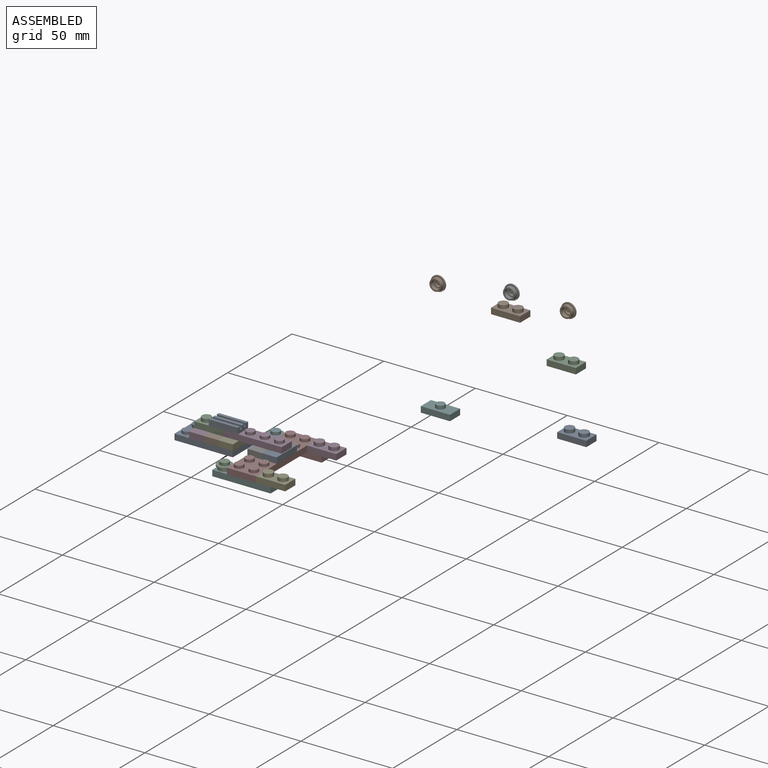
[diagram: assembled view]
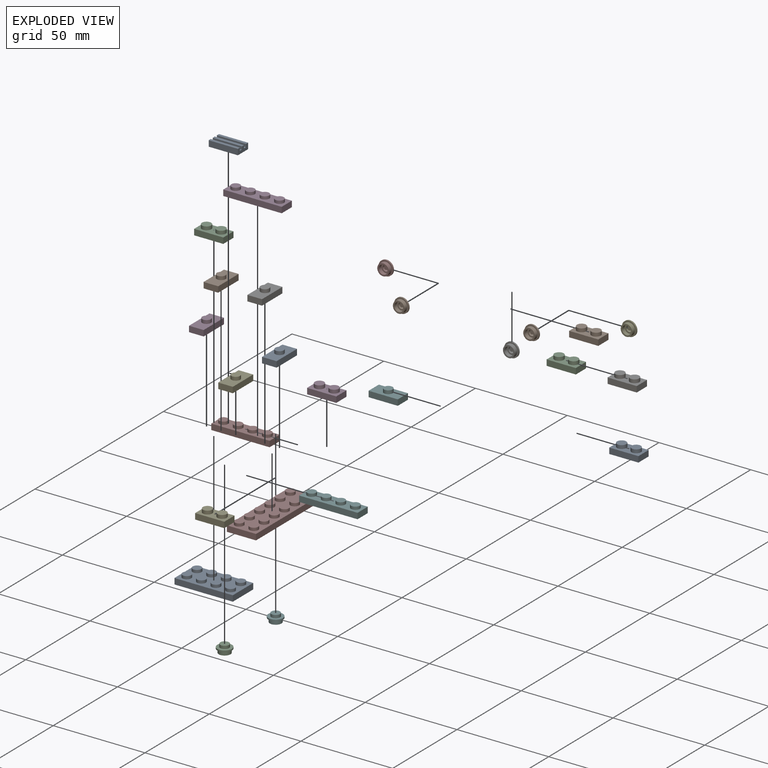
[diagram: exploded view]
GUIDED TOUR — MATED ASSEMBLY (Onshape document 3af920d181990c93784bbb1c, AutoMate assembly 3af920d181990c93784bbb1c_ad945e3d66dcbb248d293d44_ecacbf3d01ad1f083bfc4372_default)

This assembly has 26 components, labeled P0..P25 below (a component is one placed occurrence of a part; the same part can appear more than once), held together by 15 mates. A mate is a constraint between two components; its type names the relative motion it leaves free:
  FASTENED — locks the two components together rigidly (no relative motion).
Axis/direction vectors are unit vectors and 'through' points are millimeter coordinates, both in the assembly's world frame.

MATES
  1. FASTENED "Fastened 2": P13 <-> P7, direction (0.000, 0.000, 1.000) through (-69.22, -149.18, -33.66) mm
  2. FASTENED "Fastened 14": P18 <-> P25, direction (0.000, 0.000, -1.000) through (-93.08, -129.18, -26.98) mm
  3. FASTENED "Fastened 4": P3 <-> P15, direction (0.000, 0.000, -1.000) through (-53.31, -109.43, -33.66) mm
  4. FASTENED "Fastened 6": P10 <-> P13, direction (0.000, 0.000, -1.000) through (-77.18, -149.18, -33.66) mm
  5. FASTENED "Fastened 1": P7 <-> P15, direction (0.000, 0.000, -1.000) through (-61.27, -109.43, -33.66) mm
  6. FASTENED "Fastened 9": P11 <-> P22, direction (0.000, 0.000, -1.000) through (-69.22, -129.18, -26.98) mm
  7. FASTENED "Fastened 10": P20 <-> P24, direction (0.000, 0.000, -1.000) through (-81.16, -121.23, -32.06) mm
  8. FASTENED "Fastened 3": P13 <-> P12, direction (0.000, 0.000, 1.000) through (-53.31, -149.18, -33.66) mm
  9. FASTENED "Fastened 7": P8 <-> P7, direction (0.000, 0.000, -1.000) through (-65.25, -129.18, -32.06) mm
  10. FASTENED "Fastened 5": P21 <-> P15, direction (0.000, 0.000, -1.000) through (-77.18, -109.43, -33.66) mm
  11. FASTENED "Fastened 12": P19 <-> P24, direction (0.000, 0.000, 1.000) through (-97.07, -137.11, -32.06) mm
  12. FASTENED "Fastened 11": P25 <-> P20, direction (0.000, 0.000, -1.000) through (-89.11, -137.13, -32.06) mm
  13. FASTENED "Fastened 13": P20 <-> P11, direction (0.000, 0.000, 1.000) through (-85.13, -129.18, -26.98) mm
  14. FASTENED "Fastened 15": P0 <-> P11, direction (0.000, 0.000, -1.000) through (-89.13, -129.18, -25.38) mm
  15. FASTENED "Fastened 8": P22 <-> P7, direction (0.000, 0.000, -1.000) through (-65.25, -129.18, -32.06) mm

ASSEMBLY ORDER
  1. P2 — the base component [order heuristic]
  2. P6 — core [order heuristic]
  3. P4 [order verified]
  4. P1 [order verified]
  5. P23 [order verified]
  6. P9 [order verified]
  7. P3 [order verified]
  8. P7 [order verified]
  9. P21 [order verified]
  10. P15 [order verified]
  11. P10 [order verified]
  12. P13 [order verified]
  13. P8 [order verified]
  14. P20 [order verified]
  15. P19 [order verified]
  16. P25 [order verified]
  17. P24 [order verified]
  18. P18 [order verified]
  19. P22 [order verified]
  20. P11 [order verified]
  21. P0 [order verified]
  22. P12 [order verified]
  23. P14 [order verified]
  24. P17 [order verified]
  25. P16 [order verified]
  26. P5 [order verified]
(P1, P9 verified with a relaxed clearance tolerance: the source model stores slight part interference there.)
Order-tag legend:
  [order verified] — this step's position reverses a verified removal order: the component was checked to insert without passing through the ones already placed.
  [order heuristic] — the first 2 components form the assembly's core: parts whose collision-free extraction could not be verified, listed in mate-graph order.

Of the 26 components, 16 carry the full construction recipe — the FeatureScript program that regenerates the part's solid from scratch; the rest are supplied as boundary geometry only.
Because this assembly has more than 12 components, the tour below covers the 12 most significant ones individually (every recipe-attached component first, then the largest by part volume), in assembly order; the remaining 14 are summarized together in a grouped section at the end.
Each toured component is shown spotlighted twice — in the assembled view, then in the exploded view, where a leader line traces a displaced component back to its assembled socket (saturated green if recipe-attached, orange if geometry-only; every other component desaturated gray) — followed by its recipe or geometry summary and the mates that hold it.
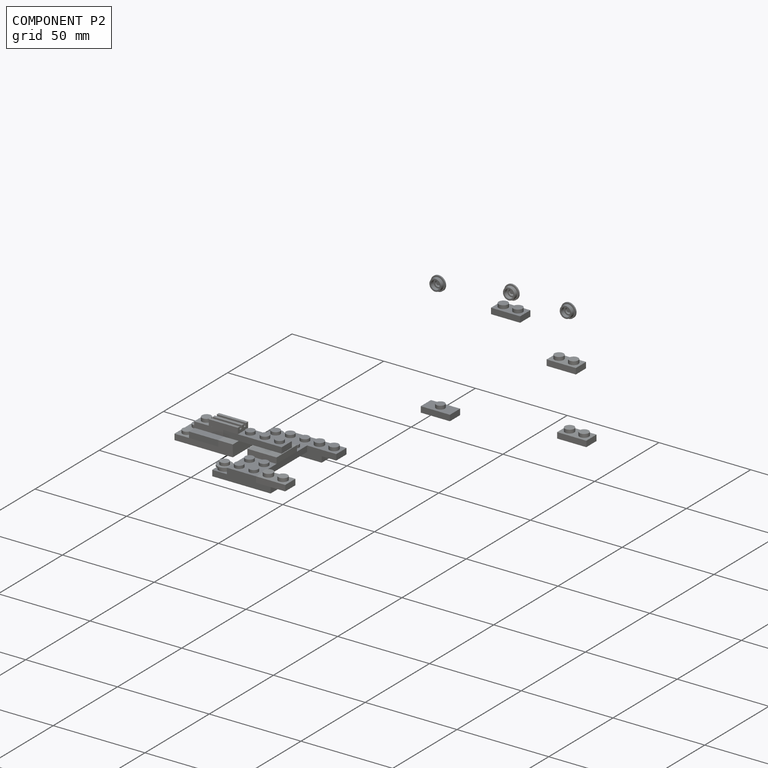
[diagram: component P2 — assembled]
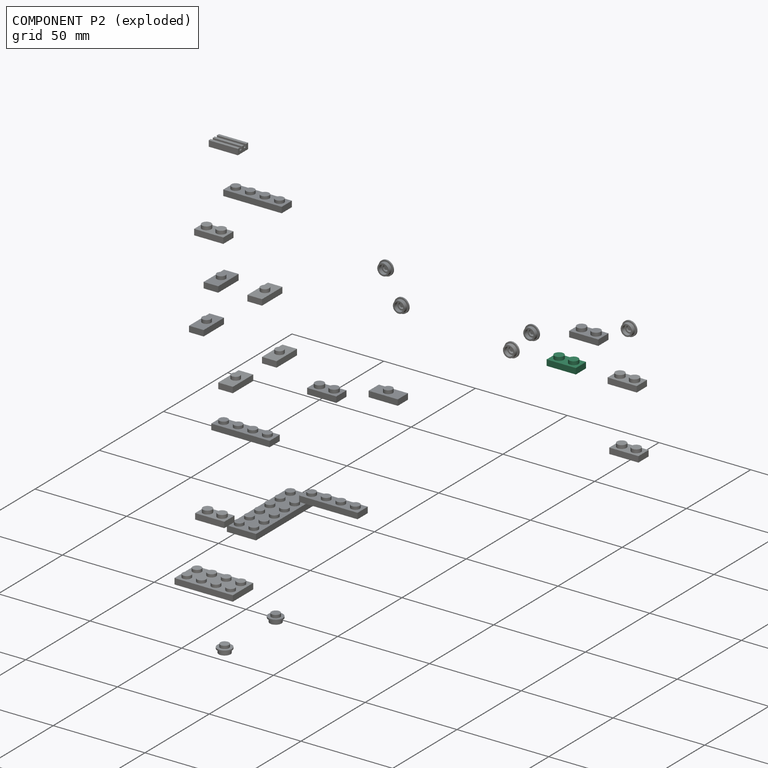
[diagram: component P2 — exploded]
COMPONENT P2 — recipe-attached (CADFS 00892229, mesh-verified: the recipe's output STEP matches this component's geometry to below the mesh-comparison resolution (tessellation chordal tolerance ~0.0277 mm)).
Held by: no mates (free).
Construction recipe (FeatureScript — the CAD program that rebuilds this solid; sketch coordinates are in the units given by the * unit suffixes, e.g. mm):

FeatureScript 1511;
import(path : "onshape/std/geometry.fs", version : "1511.0");
import(path : "onshape/std/common.fs", version : "1511.0");
const mm = millimeter;
const VERTEX = EntityType.VERTEX;
const EDGE = EntityType.EDGE;
const FACE = EntityType.FACE;
const BODY = EntityType.BODY;
function v(x, y){return vector(x, y);}
function OD(order){return orderDisambiguation(order);}
function OSD(set){return originalSetDisambiguation(set);}
function TD(topology){return topologyDisambiguation(topology);}
function TDD(query){return trueDependencyDisambiguation(query);}
function sQuery(a, b, c) {return sketchEntityQuery(a, b, c);}

annotation { "Feature Type Name" : "Feature", "Feature Type Description" : "" }
export const myFeature = defineFeature(function(context is Context, id is Id, definition is map)
    precondition{}
    {
        {
            var Q0;
            Q0=qCreatedBy(makeId("Top.planeOp"),FACE);
            var sketch = newSketch(context, id + "F0", { "sketchPlane" : qUnion([Q0])});
            skLineSegment(sketch, "E0.bottom", {"start": v(-57.35, -17.93) * mm, "end": v(-41.45, -17.93) * mm});
            skLineSegment(sketch, "E0.top", {"start": v(-57.35, -25.88) * mm, "end": v(-41.45, -25.88) * mm});
            skLineSegment(sketch, "E0.left", {"start": v(-57.35, -17.93) * mm, "end": v(-57.35, -25.88) * mm});
            skLineSegment(sketch, "E0.right", {"start": v(-41.45, -17.93) * mm, "end": v(-41.45, -25.88) * mm});
            skLineSegment(sketch, "E1", {"start": v(-53.38, -17.93) * mm, "end": v(-53.38, -25.88) * mm});
            skLineSegment(sketch, "E2", {"start": v(-45.43, -17.93) * mm, "end": v(-45.43, -25.88) * mm});
            skCircle(sketch, "E3", {"center": v(-53.38, -21.9) * mm, "radius": 2.54 * mm});
            skCircle(sketch, "E4", {"center": v(-45.43, -21.9) * mm, "radius": 2.54 * mm});
            skSolve(sketch);
        }
        {
            var Q0;
            {var subQ0=sQuery(id+"F0.wireOp",EDGE,"E0.left");Q0=makeQuery(id+"F0.imprint","IMPRINT",FACE,{"disambiguationData":[TD([[makeQuery(id+"F0.imprint","IMPRINT",EDGE,{"derivedFrom":subQ0}),1.0]])]});}
            var Q1;
            {var subQ0=sQuery(id+"F0.wireOp",EDGE,"E1");var subQ5=sQuery(id+"F0.wireOp",EDGE,"E0.bottom");var subQ6=makeQuery(id+"F0.imprint","INTERSECT",VERTEX,{"derivedFrom":[subQ5,subQ0]});Q1=makeQuery(id+"F0.imprint","IMPRINT",FACE,{"disambiguationData":[TD([[makeQuery(id+"F0.imprint","IMPRINT",EDGE,{"disambiguationData":[TD([[subQ6,-1.0]])],"derivedFrom":subQ5}),-1.0]])]});}
            var Q2;
            {var subQ5=sQuery(id+"F0.wireOp",EDGE,"E0.right");Q2=makeQuery(id+"F0.imprint","IMPRINT",FACE,{"disambiguationData":[TD([[makeQuery(id+"F0.imprint","IMPRINT",EDGE,{"derivedFrom":subQ5}),-1.0]])]});}
            var Q3;
            {var subQ0=sQuery(id+"F0.wireOp",EDGE,"E4");var subQ1=sQuery(id+"F0.wireOp",EDGE,"E2");var subQ2=makeQuery(id+"F0.imprint","INTERSECT",VERTEX,{"disambiguationData":[OD(0.0)],"derivedFrom":[subQ1,subQ0]});Q3=makeQuery(id+"F0.imprint","IMPRINT",FACE,{"disambiguationData":[TD([[makeQuery(id+"F0.imprint","IMPRINT",EDGE,{"disambiguationData":[TD([[subQ2,-1.0]])],"derivedFrom":subQ1}),-1.0]])]});}
            var Q4;
            {var subQ0=sQuery(id+"F0.wireOp",EDGE,"E4");var subQ1=sQuery(id+"F0.wireOp",EDGE,"E2");var subQ2=makeQuery(id+"F0.imprint","INTERSECT",VERTEX,{"disambiguationData":[OD(0.0)],"derivedFrom":[subQ1,subQ0]});Q4=makeQuery(id+"F0.imprint","IMPRINT",FACE,{"disambiguationData":[TD([[makeQuery(id+"F0.imprint","IMPRINT",EDGE,{"disambiguationData":[TD([[subQ2,-1.0]])],"derivedFrom":subQ1}),1.0]])]});}
            var Q5;
            {var subQ0=sQuery(id+"F0.wireOp",EDGE,"E3");var subQ1=sQuery(id+"F0.wireOp",EDGE,"E1");var subQ2=makeQuery(id+"F0.imprint","INTERSECT",VERTEX,{"disambiguationData":[OD(0.0)],"derivedFrom":[subQ1,subQ0]});Q5=makeQuery(id+"F0.imprint","IMPRINT",FACE,{"disambiguationData":[TD([[makeQuery(id+"F0.imprint","IMPRINT",EDGE,{"disambiguationData":[TD([[subQ2,-1.0]])],"derivedFrom":subQ1}),1.0]])]});}
            var Q6;
            {var subQ0=sQuery(id+"F0.wireOp",EDGE,"E3");var subQ1=sQuery(id+"F0.wireOp",EDGE,"E1");var subQ2=makeQuery(id+"F0.imprint","INTERSECT",VERTEX,{"disambiguationData":[OD(0.0)],"derivedFrom":[subQ1,subQ0]});Q6=makeQuery(id+"F0.imprint","IMPRINT",FACE,{"disambiguationData":[TD([[makeQuery(id+"F0.imprint","IMPRINT",EDGE,{"disambiguationData":[TD([[subQ2,-1.0]])],"derivedFrom":subQ1}),-1.0]])]});}
            extrude(context, id + "F1", {"entities" : qUnion([Q0, Q1, Q2, Q3, Q4, Q5, Q6]), "depth" : 3.17 * mm, "offsetDistance" : 25.4 * mm});
        }
        {
            var Q0;
            {var subQ0=sQuery(id+"F0.wireOp",EDGE,"E3");var subQ1=sQuery(id+"F0.wireOp",EDGE,"E1");var subQ2=makeQuery(id+"F0.imprint","INTERSECT",VERTEX,{"disambiguationData":[OD(0.0)],"derivedFrom":[subQ1,subQ0]});Q0=makeQuery(id+"F0.imprint","IMPRINT",FACE,{"disambiguationData":[TD([[makeQuery(id+"F0.imprint","IMPRINT",EDGE,{"disambiguationData":[TD([[subQ2,-1.0]])],"derivedFrom":subQ1}),-1.0]])]});}
            var Q1;
            {var subQ0=sQuery(id+"F0.wireOp",EDGE,"E3");var subQ1=sQuery(id+"F0.wireOp",EDGE,"E1");var subQ2=makeQuery(id+"F0.imprint","INTERSECT",VERTEX,{"disambiguationData":[OD(0.0)],"derivedFrom":[subQ1,subQ0]});Q1=makeQuery(id+"F0.imprint","IMPRINT",FACE,{"disambiguationData":[TD([[makeQuery(id+"F0.imprint","IMPRINT",EDGE,{"disambiguationData":[TD([[subQ2,-1.0]])],"derivedFrom":subQ1}),1.0]])]});}
            var Q2;
            {var subQ0=sQuery(id+"F0.wireOp",EDGE,"E4");var subQ1=sQuery(id+"F0.wireOp",EDGE,"E2");var subQ2=makeQuery(id+"F0.imprint","INTERSECT",VERTEX,{"disambiguationData":[OD(0.0)],"derivedFrom":[subQ1,subQ0]});Q2=makeQuery(id+"F0.imprint","IMPRINT",FACE,{"disambiguationData":[TD([[makeQuery(id+"F0.imprint","IMPRINT",EDGE,{"disambiguationData":[TD([[subQ2,-1.0]])],"derivedFrom":subQ1}),-1.0]])]});}
            var Q3;
            {var subQ0=sQuery(id+"F0.wireOp",EDGE,"E4");var subQ1=sQuery(id+"F0.wireOp",EDGE,"E2");var subQ2=makeQuery(id+"F0.imprint","INTERSECT",VERTEX,{"disambiguationData":[OD(0.0)],"derivedFrom":[subQ1,subQ0]});Q3=makeQuery(id+"F0.imprint","IMPRINT",FACE,{"disambiguationData":[TD([[makeQuery(id+"F0.imprint","IMPRINT",EDGE,{"disambiguationData":[TD([[subQ2,-1.0]])],"derivedFrom":subQ1}),1.0]])]});}
            extrude(context, id + "F2", {"entities" : qUnion([Q0, Q1, Q2, Q3]), "operationType" : NewBodyOperationType.ADD, "depth" : 5.08 * mm, "offsetDistance" : 25.4 * mm});
        }
        {
            var Q0;
            Q0=makeQuery(id+"F1.opExtrude","CAP_FACE",FACE,{"disambiguationData":[OSD([sQuery(id+"F0.wireOp",EDGE,"E0.bottom"),sQuery(id+"F0.wireOp",EDGE,"E0.top"),sQuery(id+"F0.wireOp",EDGE,"E0.left"),sQuery(id+"F0.wireOp",EDGE,"E0.right")])],"isStart":true});
            shell(context, id + "F3", {"entities" : qUnion([Q0]), "thickness" : 1.6 * mm});
        }
    });
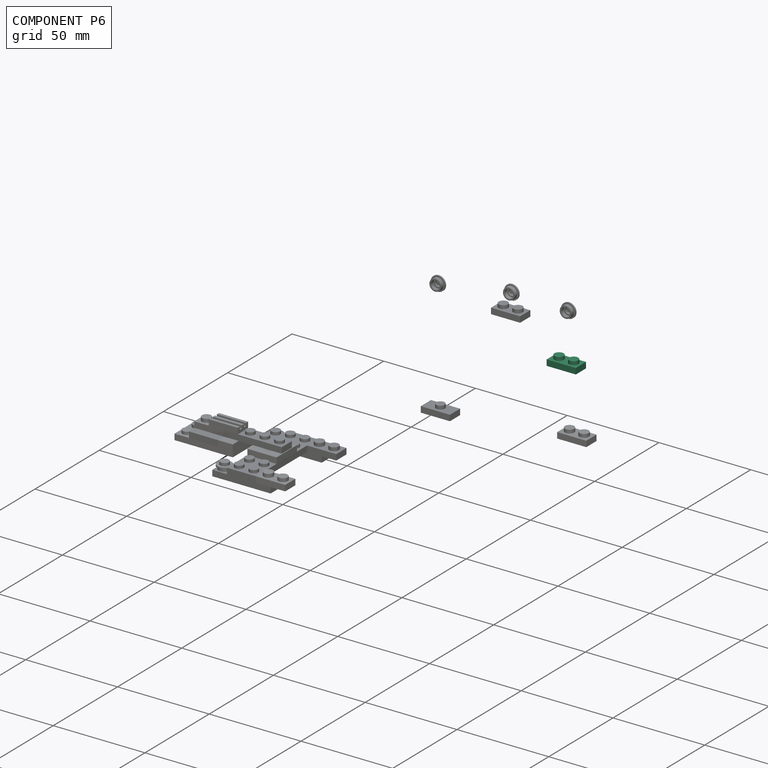
[diagram: component P6 — assembled]
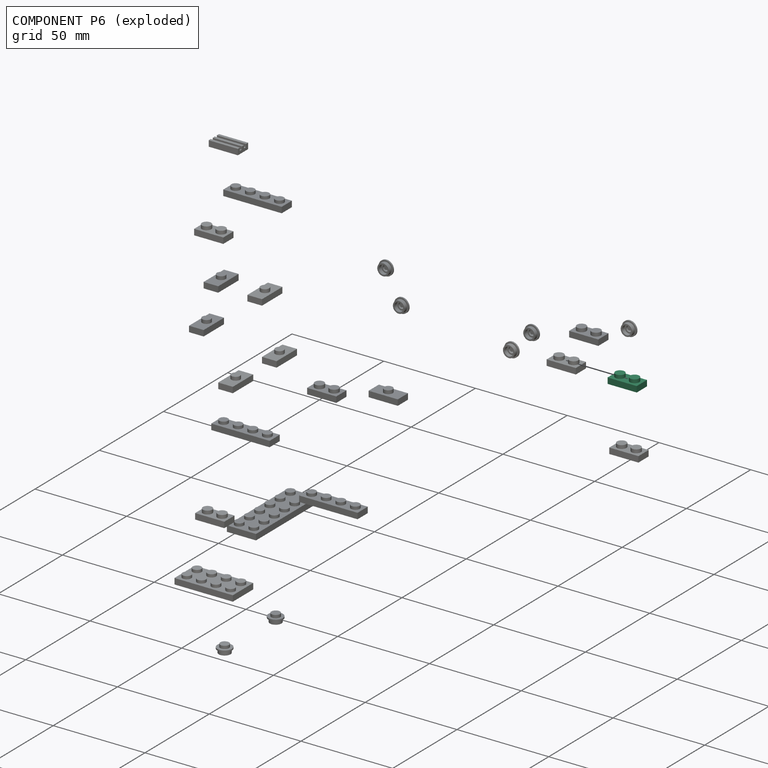
[diagram: component P6 — exploded]
COMPONENT P6 — same part as P2 (CADFS 00892229); its construction recipe is shown at P2.
Held by: no mates (free).
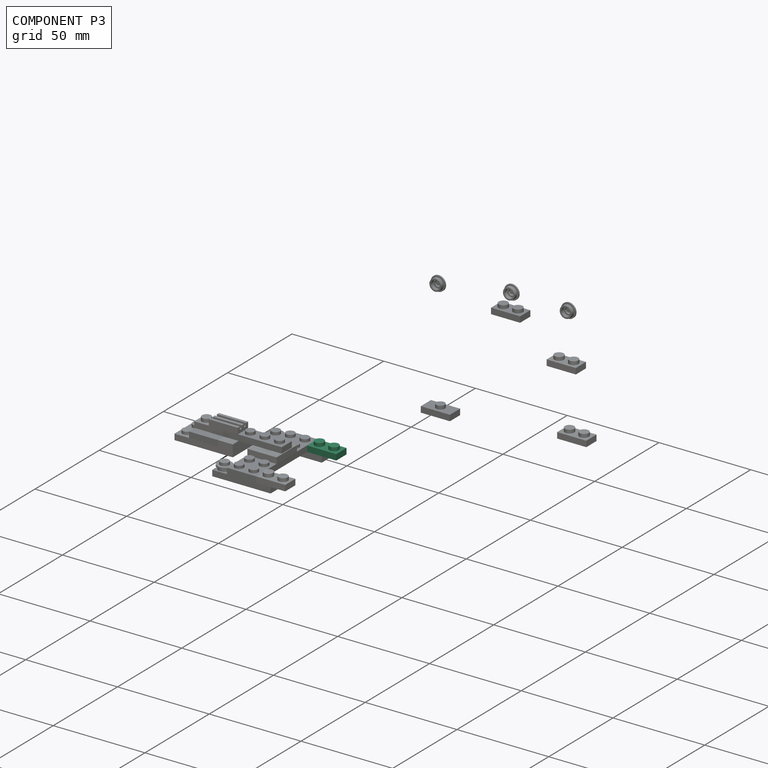
[diagram: component P3 — assembled]
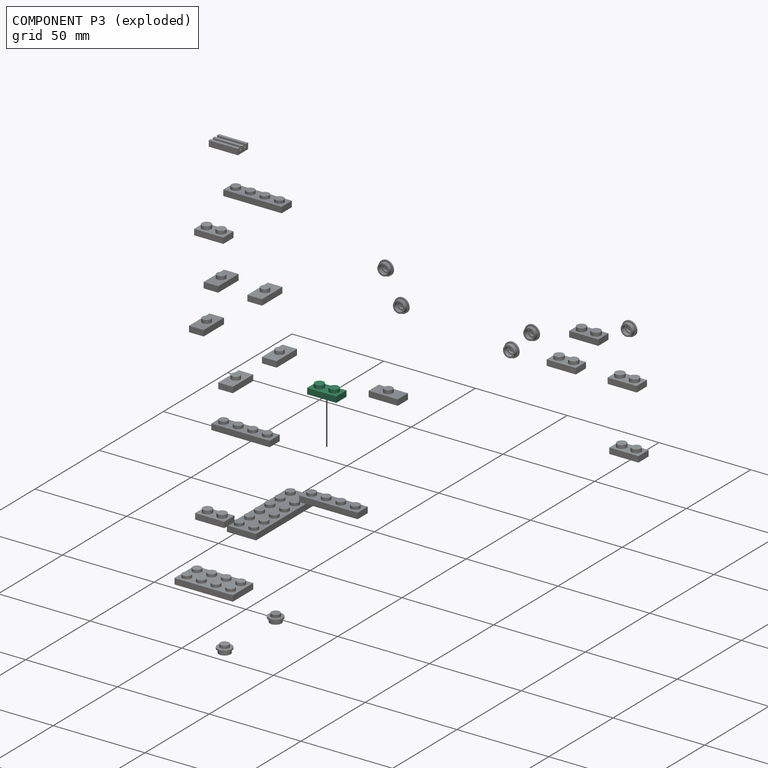
[diagram: component P3 — exploded]
COMPONENT P3 — same part as P2 (CADFS 00892229); its construction recipe is shown at P2.
Held by: FASTENED mate "Fastened 4" to P15.
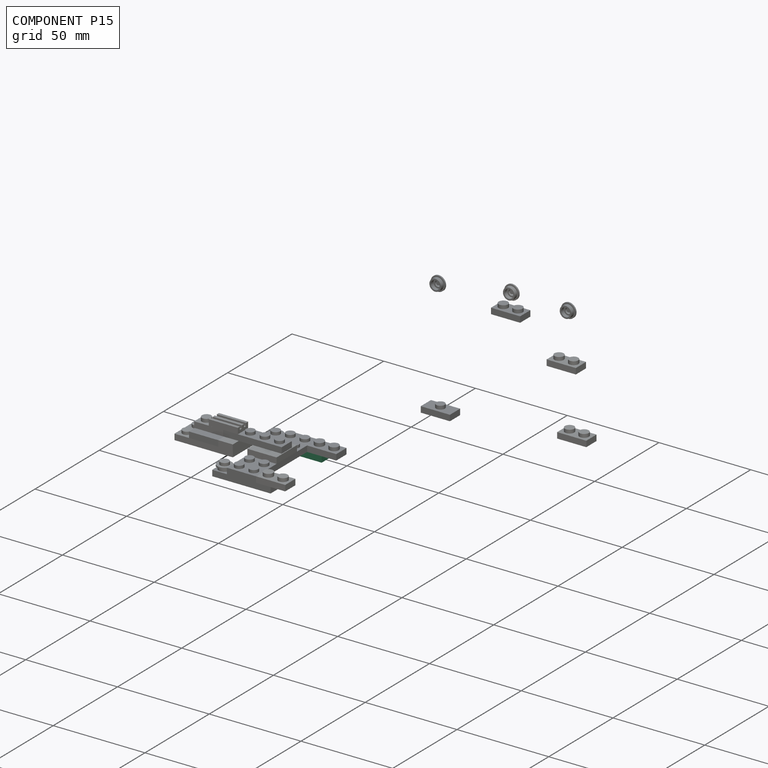
[diagram: component P15 — assembled]
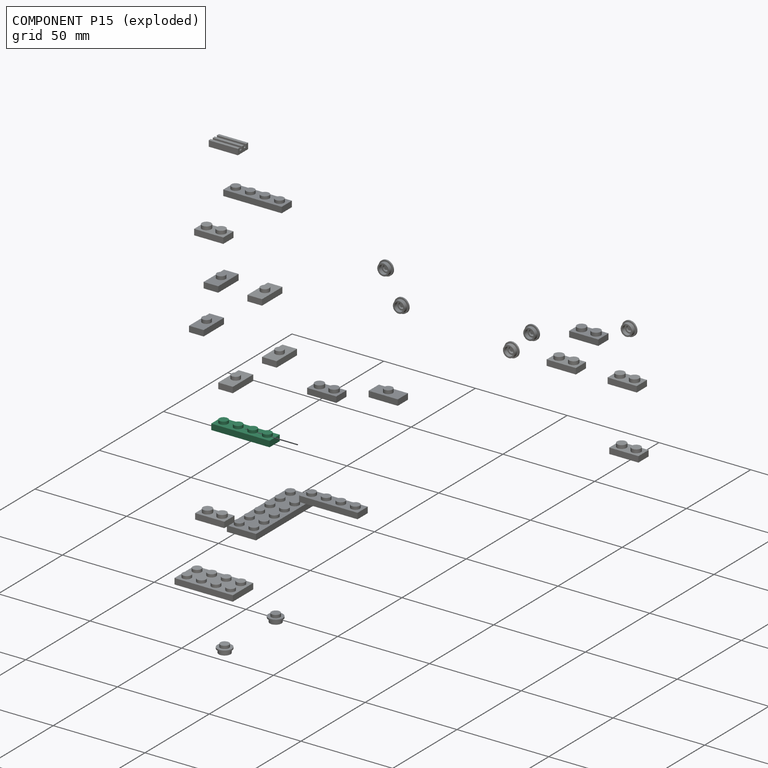
[diagram: component P15 — exploded]
COMPONENT P15 — same part as P11 (CADFS 00880411); its construction recipe is shown at P11.
Held by: FASTENED mate "Fastened 4" to P3; FASTENED mate "Fastened 1" to P7; FASTENED mate "Fastened 5" to P21.
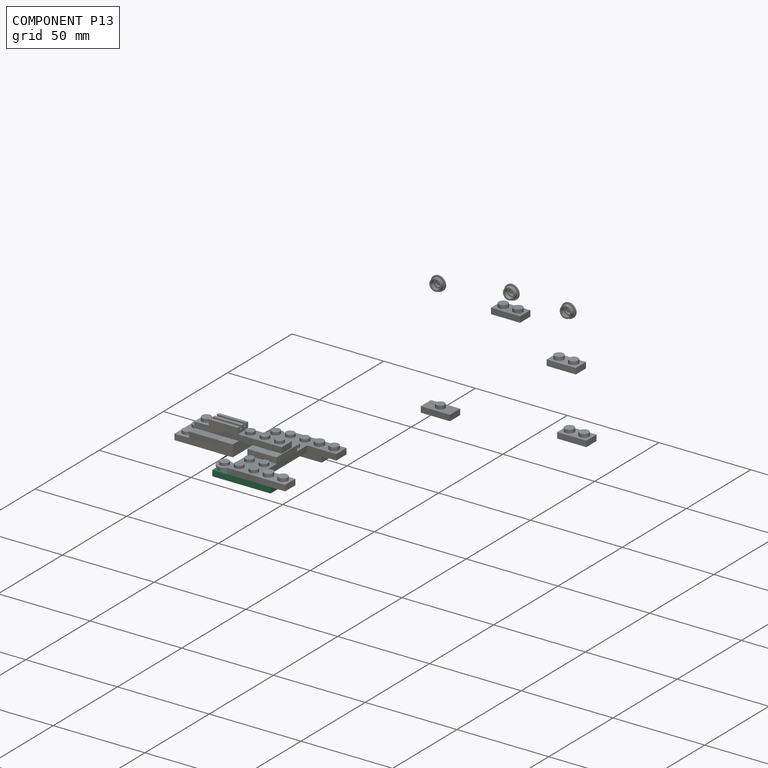
[diagram: component P13 — assembled]
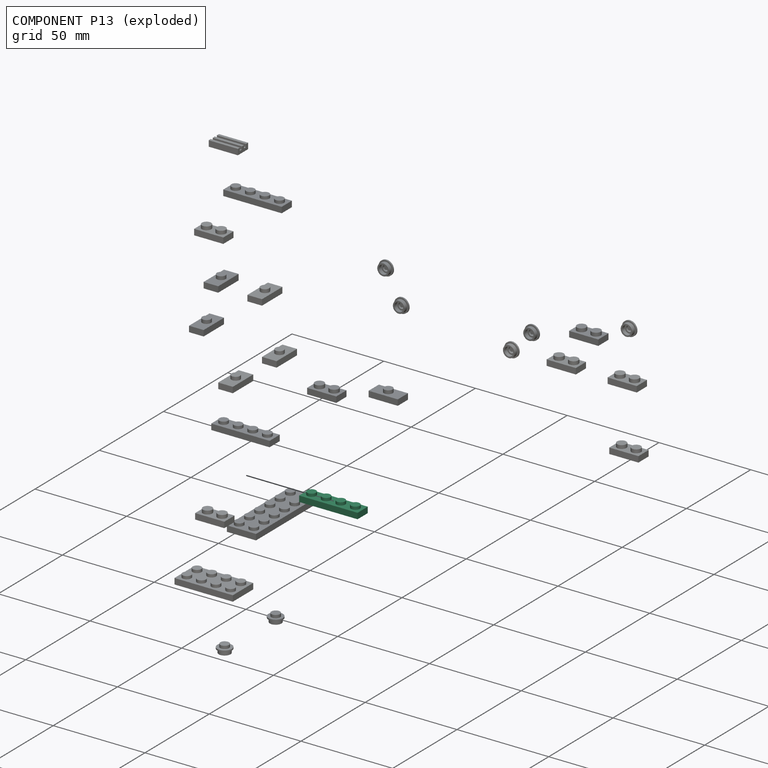
[diagram: component P13 — exploded]
COMPONENT P13 — same part as P11 (CADFS 00880411); its construction recipe is shown at P11.
Held by: FASTENED mate "Fastened 2" to P7; FASTENED mate "Fastened 6" to P10; FASTENED mate "Fastened 3" to P12.
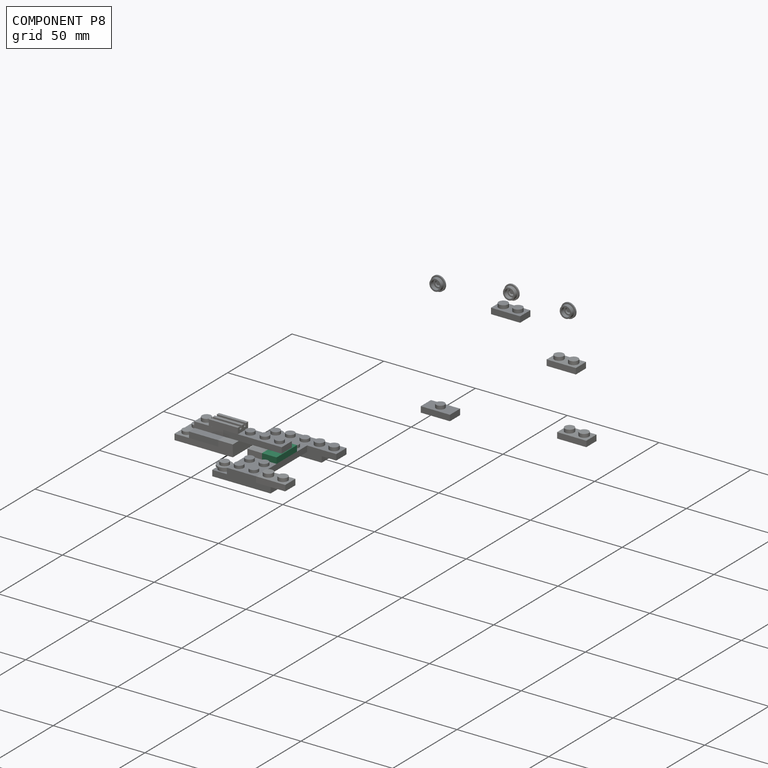
[diagram: component P8 — assembled]
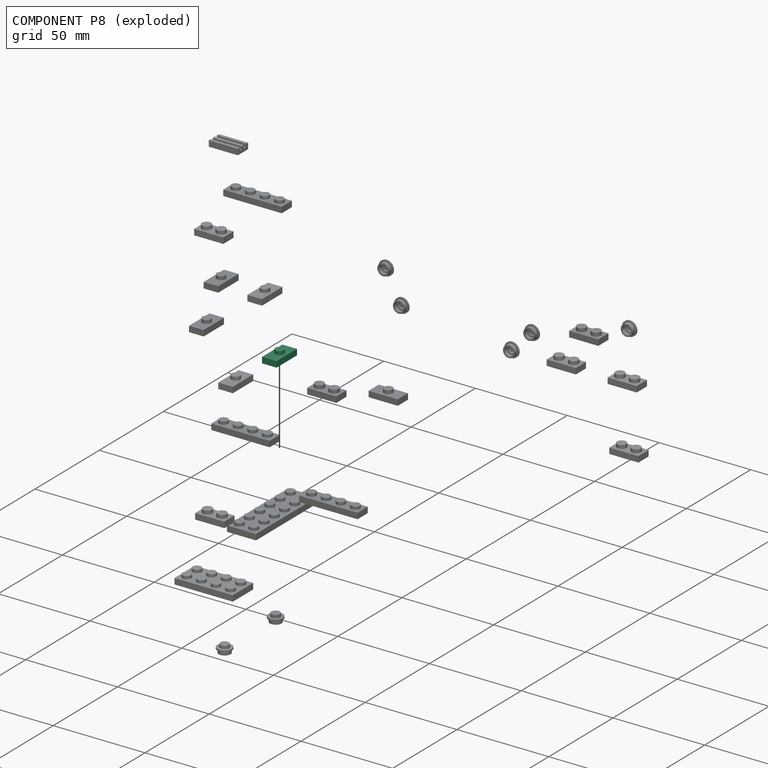
[diagram: component P8 — exploded]
COMPONENT P8 — same part as P5 (CADFS 00890111); its construction recipe is shown at P5.
Held by: FASTENED mate "Fastened 7" to P7.
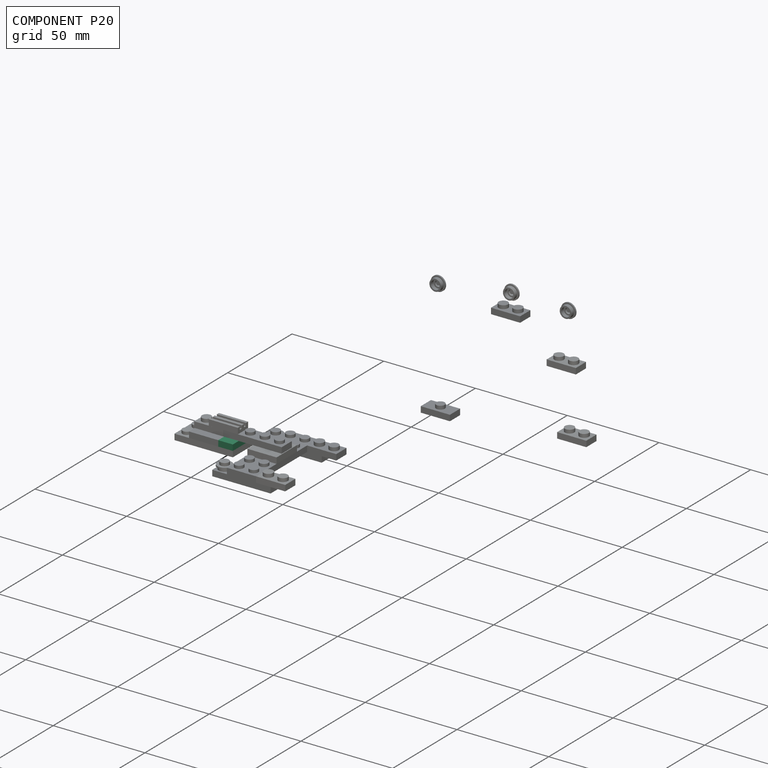
[diagram: component P20 — assembled]
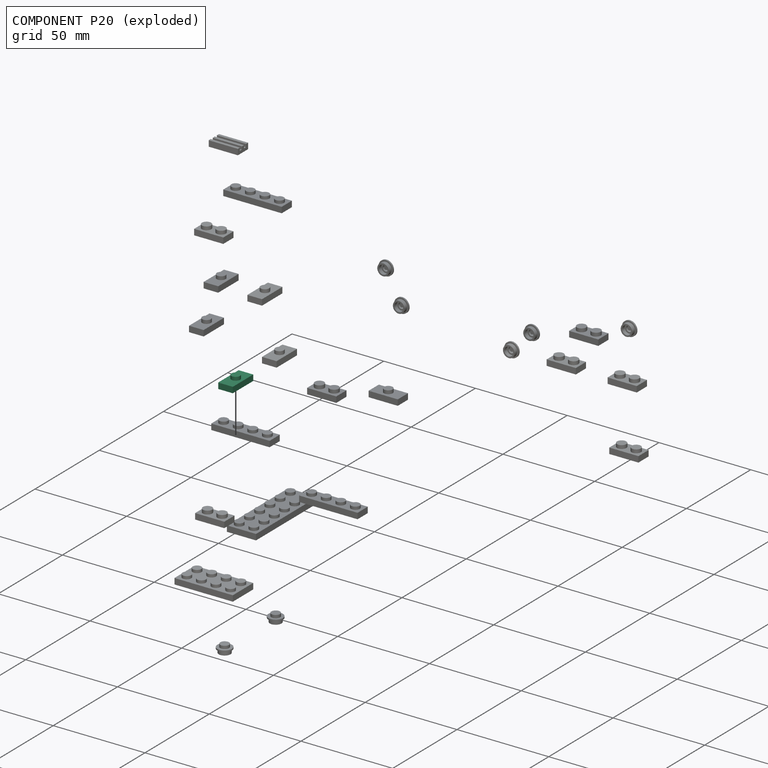
[diagram: component P20 — exploded]
COMPONENT P20 — same part as P5 (CADFS 00890111); its construction recipe is shown at P5.
Held by: FASTENED mate "Fastened 10" to P24; FASTENED mate "Fastened 11" to P25; FASTENED mate "Fastened 13" to P11.
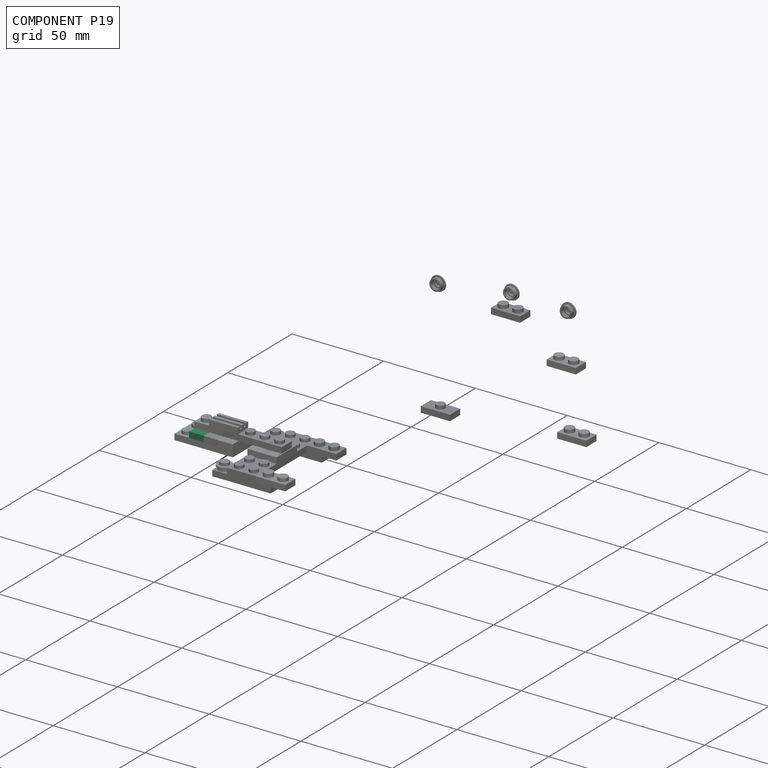
[diagram: component P19 — assembled]
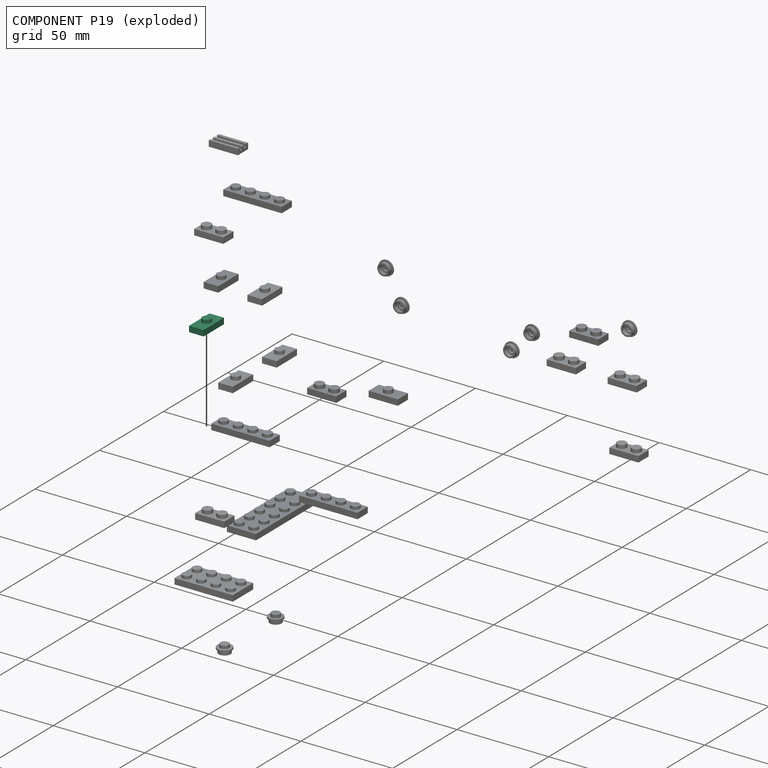
[diagram: component P19 — exploded]
COMPONENT P19 — same part as P5 (CADFS 00890111); its construction recipe is shown at P5.
Held by: FASTENED mate "Fastened 12" to P24.
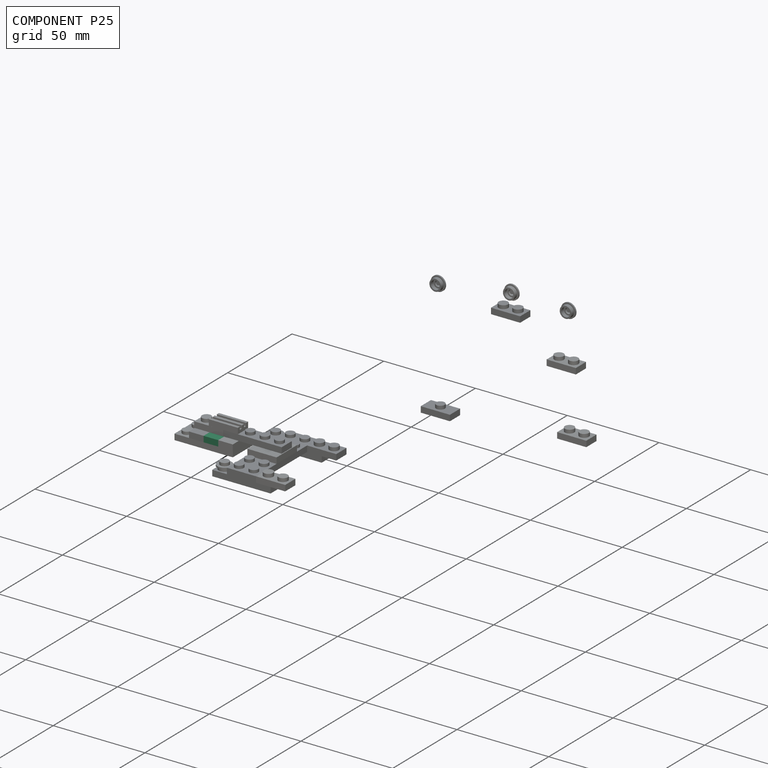
[diagram: component P25 — assembled]
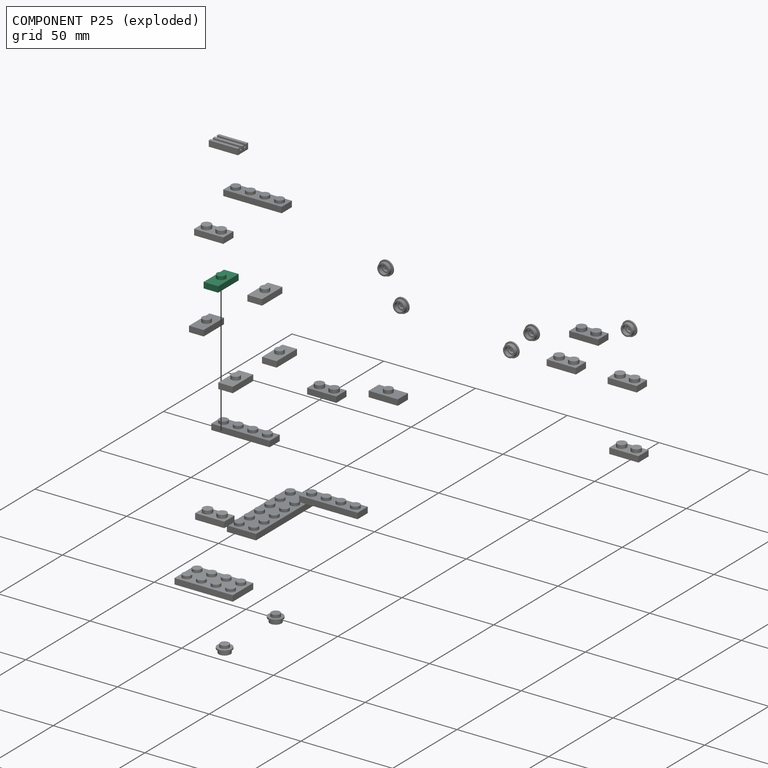
[diagram: component P25 — exploded]
COMPONENT P25 — same part as P5 (CADFS 00890111); its construction recipe is shown at P5.
Held by: FASTENED mate "Fastened 14" to P18; FASTENED mate "Fastened 11" to P20.
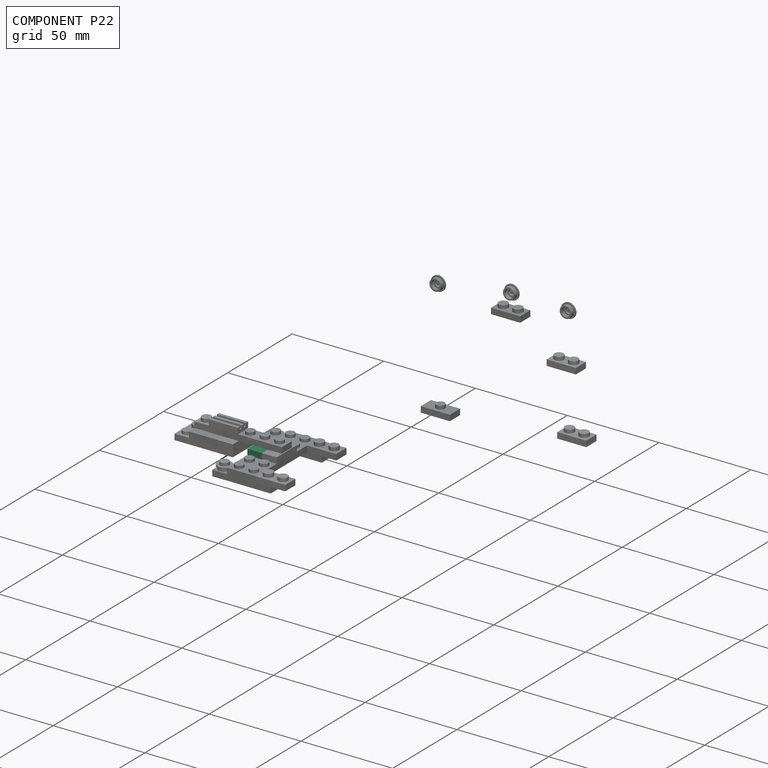
[diagram: component P22 — assembled]
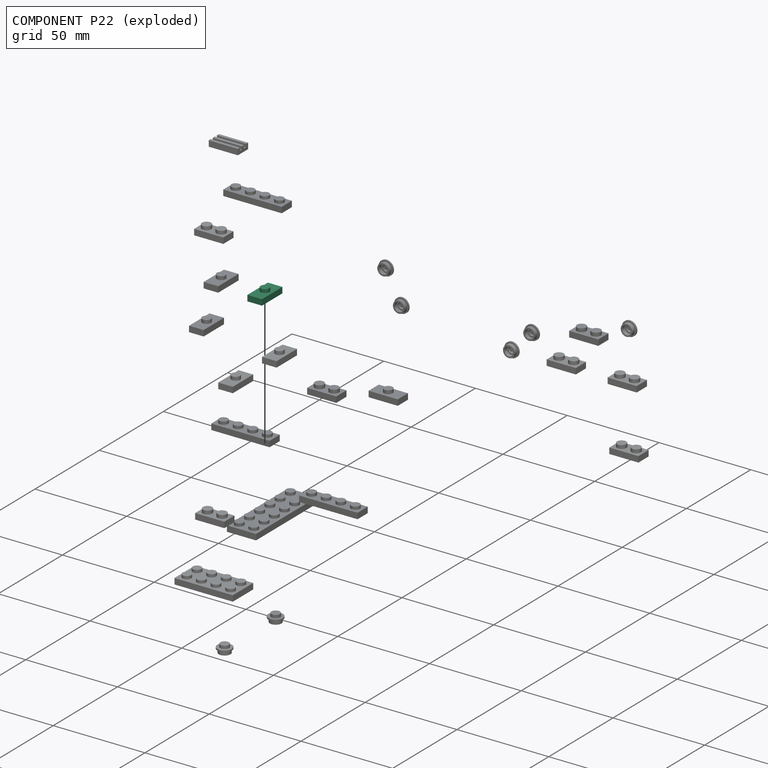
[diagram: component P22 — exploded]
COMPONENT P22 — same part as P5 (CADFS 00890111); its construction recipe is shown at P5.
Held by: FASTENED mate "Fastened 9" to P11; FASTENED mate "Fastened 8" to P7.
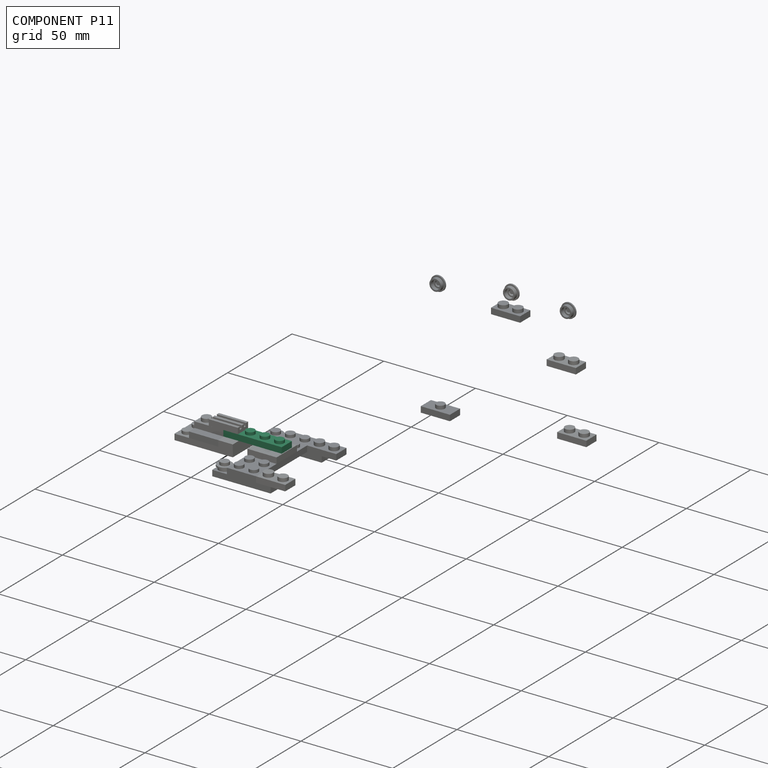
[diagram: component P11 — assembled]
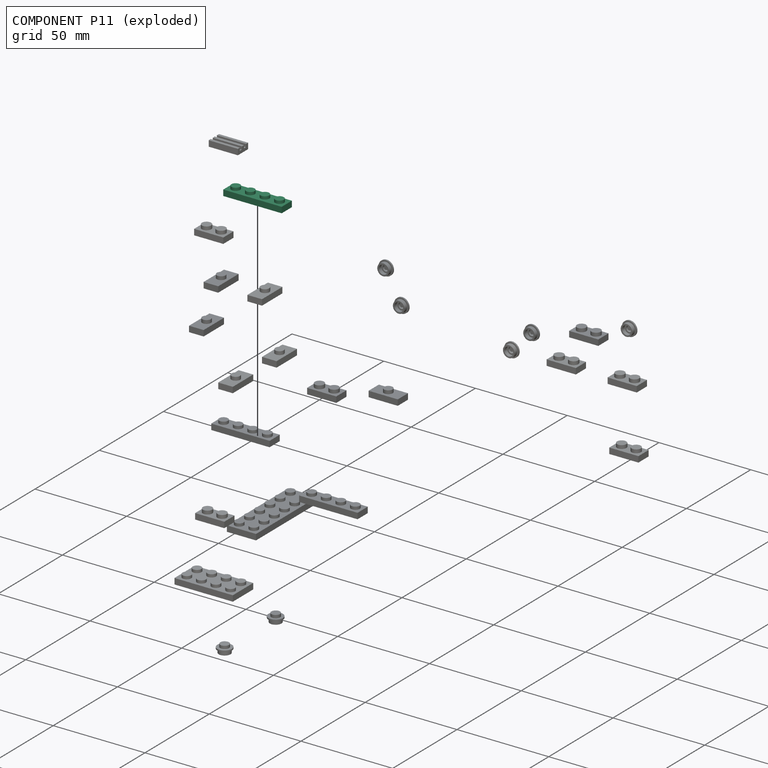
[diagram: component P11 — exploded]
COMPONENT P11 — recipe-attached (CADFS 00880411, mesh-verified: the recipe's output STEP matches this component's geometry to below the mesh-comparison resolution (tessellation chordal tolerance ~0.0497 mm)).
Held by: FASTENED mate "Fastened 9" to P22; FASTENED mate "Fastened 13" to P20; FASTENED mate "Fastened 15" to P0.
Construction recipe (FeatureScript — the CAD program that rebuilds this solid; sketch coordinates are in the units given by the * unit suffixes, e.g. mm):

FeatureScript 1511;
import(path : "onshape/std/geometry.fs", version : "1511.0");
import(path : "onshape/std/common.fs", version : "1511.0");
const mm = millimeter;
const VERTEX = EntityType.VERTEX;
const EDGE = EntityType.EDGE;
const FACE = EntityType.FACE;
const BODY = EntityType.BODY;
function v(x, y){return vector(x, y);}
function OD(order){return orderDisambiguation(order);}
function OSD(set){return originalSetDisambiguation(set);}
function TD(topology){return topologyDisambiguation(topology);}
function TDD(query){return trueDependencyDisambiguation(query);}
function sQuery(a, b, c) {return sketchEntityQuery(a, b, c);}

annotation { "Feature Type Name" : "Feature", "Feature Type Description" : "" }
export const myFeature = defineFeature(function(context is Context, id is Id, definition is map)
    precondition{}
    {
        {
            var Q0;
            Q0=qCreatedBy(makeId("Top.planeOp"),FACE);
            var sketch = newSketch(context, id + "F0", { "sketchPlane" : qUnion([Q0])});
            skLineSegment(sketch, "E0.bottom", {"start": v(-25.72, 19.92) * mm, "end": v(6.1, 19.92) * mm});
            skLineSegment(sketch, "E0.top", {"start": v(-25.72, 12) * mm, "end": v(6.1, 12) * mm});
            skLineSegment(sketch, "E0.left", {"start": v(-25.72, 19.92) * mm, "end": v(-25.72, 12) * mm});
            skLineSegment(sketch, "E0.right", {"start": v(6.1, 19.92) * mm, "end": v(6.1, 12) * mm});
            skLineSegment(sketch, "E1", {"start": v(-25.72, 15.95) * mm, "end": v(6.1, 15.95) * mm, "construction": true});
            skCircle(sketch, "E2", {"center": v(-21.75, 15.95) * mm, "radius": 2.39 * mm});
            skCircle(sketch, "E3", {"center": v(-13.8, 15.95) * mm, "radius": 2.39 * mm});
            skCircle(sketch, "E4", {"center": v(-5.84, 15.95) * mm, "radius": 2.39 * mm});
            skCircle(sketch, "E5", {"center": v(2.12, 15.95) * mm, "radius": 2.39 * mm});
            skSolve(sketch);
        }
        {
            var Q0;
            Q0=makeQuery(id+"F0.imprint","IMPRINT",FACE,{"disambiguationData":[TD([[makeQuery(id+"F0.imprint","IMPRINT",EDGE,{"derivedFrom":sQuery(id+"F0.wireOp",EDGE,"E0.bottom")}),-1.0]])]});
            extrude(context, id + "F1", {"entities" : qUnion([Q0]), "depth" : 3.17 * mm, "offsetDistance" : 25.4 * mm});
        }
        {
            var Q0;
            Q0=makeQuery(id+"F0.imprint","IMPRINT",FACE,{"disambiguationData":[TD([[makeQuery(id+"F0.imprint","IMPRINT",EDGE,{"derivedFrom":sQuery(id+"F0.wireOp",EDGE,"E2")}),1.0]])]});
            var Q1;
            Q1=makeQuery(id+"F0.imprint","IMPRINT",FACE,{"disambiguationData":[TD([[makeQuery(id+"F0.imprint","IMPRINT",EDGE,{"derivedFrom":sQuery(id+"F0.wireOp",EDGE,"E3")}),1.0]])]});
            var Q2;
            Q2=makeQuery(id+"F0.imprint","IMPRINT",FACE,{"disambiguationData":[TD([[makeQuery(id+"F0.imprint","IMPRINT",EDGE,{"derivedFrom":sQuery(id+"F0.wireOp",EDGE,"E4")}),1.0]])]});
            var Q3;
            Q3=makeQuery(id+"F0.imprint","IMPRINT",FACE,{"disambiguationData":[TD([[makeQuery(id+"F0.imprint","IMPRINT",EDGE,{"derivedFrom":sQuery(id+"F0.wireOp",EDGE,"E5")}),1.0]])]});
            extrude(context, id + "F2", {"entities" : qUnion([Q0, Q1, Q2, Q3]), "operationType" : NewBodyOperationType.ADD, "depth" : 4.75 * mm, "offsetDistance" : 25.4 * mm});
        }
        {
            var Q0;
            {var subQ0=sQuery(id+"F0.wireOp",EDGE,"E5");var subQ1=sQuery(id+"F0.wireOp",EDGE,"E4");var subQ2=sQuery(id+"F0.wireOp",EDGE,"E3");var subQ3=sQuery(id+"F0.wireOp",EDGE,"E2");Q0=makeQuery(id+"F2.boolean.opBoolean","MERGE",FACE,{"derivedFrom":[makeQuery(id+"F1.opExtrude","CAP_FACE",FACE,{"disambiguationData":[OSD([sQuery(id+"F0.wireOp",EDGE,"E0.bottom"),sQuery(id+"F0.wireOp",EDGE,"E0.top"),sQuery(id+"F0.wireOp",EDGE,"E0.left"),sQuery(id+"F0.wireOp",EDGE,"E0.right"),subQ3,subQ2,subQ1,subQ0])],"isStart":true}),makeQuery(id+"F2.opExtrude","CAP_FACE",FACE,{"disambiguationData":[OSD([subQ3])],"isStart":true}),makeQuery(id+"F2.opExtrude","CAP_FACE",FACE,{"disambiguationData":[OSD([subQ2])],"isStart":true}),makeQuery(id+"F2.opExtrude","CAP_FACE",FACE,{"disambiguationData":[OSD([subQ1])],"isStart":true}),makeQuery(id+"F2.opExtrude","CAP_FACE",FACE,{"disambiguationData":[OSD([subQ0])],"isStart":true})]});}
            shell(context, id + "F3", {"entities" : qUnion([Q0]), "thickness" : 1.6 * mm});
        }
    });
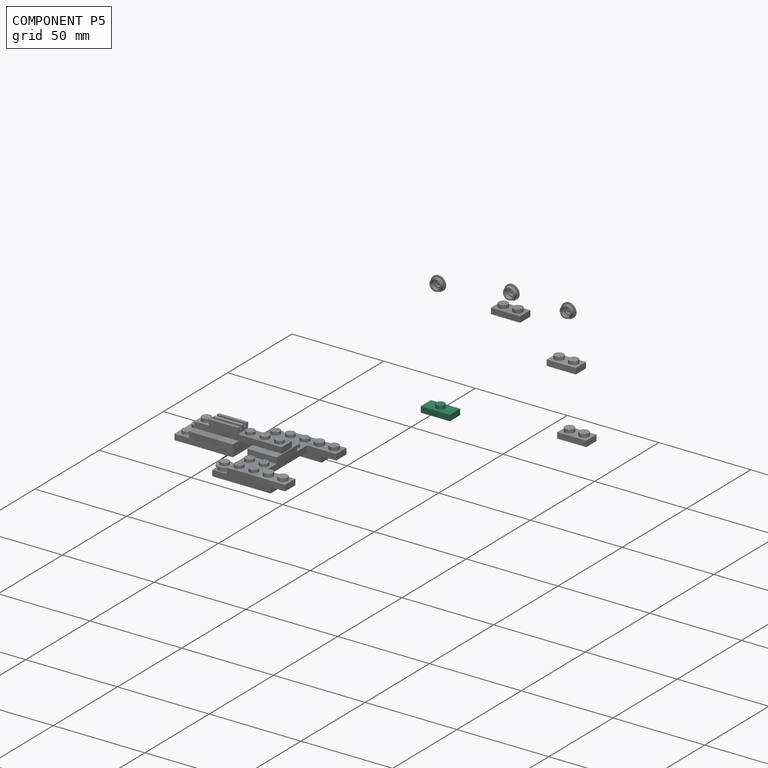
[diagram: component P5 — assembled]
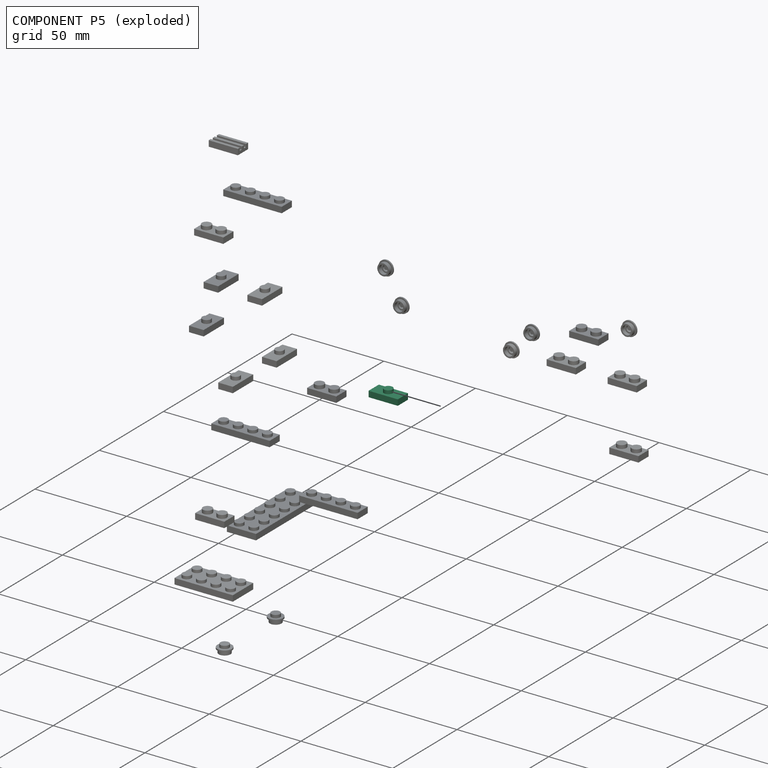
[diagram: component P5 — exploded]
COMPONENT P5 — recipe-attached (CADFS 00890111, mesh-verified: the recipe's output STEP matches this component's geometry to below the mesh-comparison resolution (tessellation chordal tolerance ~0.0277 mm)).
Held by: no mates (free).
Construction recipe (FeatureScript — the CAD program that rebuilds this solid; sketch coordinates are in the units given by the * unit suffixes, e.g. mm):

FeatureScript 1511;
import(path : "onshape/std/geometry.fs", version : "1511.0");
import(path : "onshape/std/common.fs", version : "1511.0");
const mm = millimeter;
const VERTEX = EntityType.VERTEX;
const EDGE = EntityType.EDGE;
const FACE = EntityType.FACE;
const BODY = EntityType.BODY;
function v(x, y){return vector(x, y);}
function OD(order){return orderDisambiguation(order);}
function OSD(set){return originalSetDisambiguation(set);}
function TD(topology){return topologyDisambiguation(topology);}
function TDD(query){return trueDependencyDisambiguation(query);}
function sQuery(a, b, c) {return sketchEntityQuery(a, b, c);}

annotation { "Feature Type Name" : "Feature", "Feature Type Description" : "" }
export const myFeature = defineFeature(function(context is Context, id is Id, definition is map)
    precondition{}
    {
        {
            var Q0;
            Q0=qCreatedBy(makeId("Top.planeOp"),FACE);
            var sketch = newSketch(context, id + "F0", { "sketchPlane" : qUnion([Q0])});
            skLineSegment(sketch, "E0.bottom", {"start": v(-9.05, 13.27) * mm, "end": v(6.85, 13.27) * mm});
            skLineSegment(sketch, "E0.top", {"start": v(-9.05, 5.32) * mm, "end": v(6.85, 5.32) * mm});
            skLineSegment(sketch, "E0.left", {"start": v(-9.05, 13.27) * mm, "end": v(-9.05, 5.32) * mm});
            skLineSegment(sketch, "E0.right", {"start": v(6.85, 13.27) * mm, "end": v(6.85, 5.32) * mm});
            skLineSegment(sketch, "E1", {"start": v(-9.05, 13.27) * mm, "end": v(6.85, 5.32) * mm});
            skCircle(sketch, "E2", {"center": v(-1.1, 9.3) * mm, "radius": 2.36 * mm});
            skSolve(sketch);
        }
        {
            var Q0;
            {var subQ4=sQuery(id+"F0.wireOp",EDGE,"E0.bottom");Q0=makeQuery(id+"F0.imprint","IMPRINT",FACE,{"disambiguationData":[TD([[makeQuery(id+"F0.imprint","IMPRINT",EDGE,{"derivedFrom":subQ4}),-1.0]])]});}
            var Q1;
            {var subQ4=sQuery(id+"F0.wireOp",EDGE,"E0.top");Q1=makeQuery(id+"F0.imprint","IMPRINT",FACE,{"disambiguationData":[TD([[makeQuery(id+"F0.imprint","IMPRINT",EDGE,{"derivedFrom":subQ4}),1.0]])]});}
            var Q2;
            {var subQ0=sQuery(id+"F0.wireOp",EDGE,"E2");var subQ1=sQuery(id+"F0.wireOp",EDGE,"E1");var subQ2=makeQuery(id+"F0.imprint","INTERSECT",VERTEX,{"disambiguationData":[OD(0.0)],"derivedFrom":[subQ1,subQ0]});Q2=makeQuery(id+"F0.imprint","IMPRINT",FACE,{"disambiguationData":[TD([[makeQuery(id+"F0.imprint","IMPRINT",EDGE,{"disambiguationData":[TD([[subQ2,-1.0]])],"derivedFrom":subQ1}),1.0]])]});}
            var Q3;
            {var subQ0=sQuery(id+"F0.wireOp",EDGE,"E2");var subQ1=sQuery(id+"F0.wireOp",EDGE,"E1");var subQ2=makeQuery(id+"F0.imprint","INTERSECT",VERTEX,{"disambiguationData":[OD(0.0)],"derivedFrom":[subQ1,subQ0]});Q3=makeQuery(id+"F0.imprint","IMPRINT",FACE,{"disambiguationData":[TD([[makeQuery(id+"F0.imprint","IMPRINT",EDGE,{"disambiguationData":[TD([[subQ2,-1.0]])],"derivedFrom":subQ1}),-1.0]])]});}
            extrude(context, id + "F1", {"entities" : qUnion([Q0, Q1, Q2, Q3]), "depth" : 3.17 * mm, "offsetDistance" : 25.4 * mm});
        }
        {
            var Q0;
            {var subQ0=sQuery(id+"F0.wireOp",EDGE,"E2");var subQ1=sQuery(id+"F0.wireOp",EDGE,"E1");var subQ2=makeQuery(id+"F0.imprint","INTERSECT",VERTEX,{"disambiguationData":[OD(0.0)],"derivedFrom":[subQ1,subQ0]});Q0=makeQuery(id+"F0.imprint","IMPRINT",FACE,{"disambiguationData":[TD([[makeQuery(id+"F0.imprint","IMPRINT",EDGE,{"disambiguationData":[TD([[subQ2,-1.0]])],"derivedFrom":subQ1}),1.0]])]});}
            var Q1;
            {var subQ0=sQuery(id+"F0.wireOp",EDGE,"E2");var subQ1=sQuery(id+"F0.wireOp",EDGE,"E1");var subQ2=makeQuery(id+"F0.imprint","INTERSECT",VERTEX,{"disambiguationData":[OD(0.0)],"derivedFrom":[subQ1,subQ0]});Q1=makeQuery(id+"F0.imprint","IMPRINT",FACE,{"disambiguationData":[TD([[makeQuery(id+"F0.imprint","IMPRINT",EDGE,{"disambiguationData":[TD([[subQ2,-1.0]])],"derivedFrom":subQ1}),-1.0]])]});}
            extrude(context, id + "F2", {"entities" : qUnion([Q0, Q1]), "operationType" : NewBodyOperationType.ADD, "depth" : 5.08 * mm, "offsetDistance" : 25.4 * mm});
        }
    });
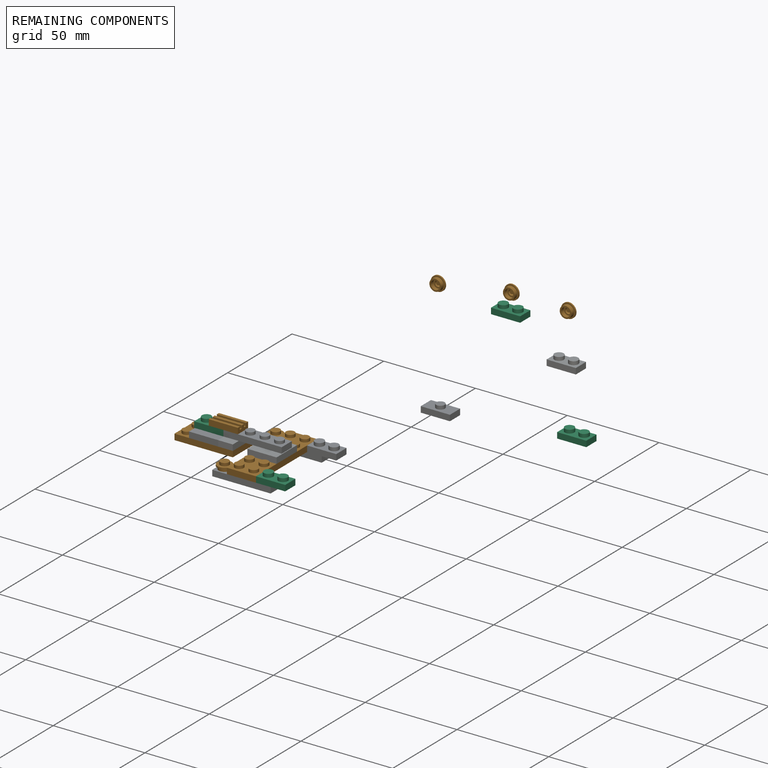
[diagram: remaining components — assembled]
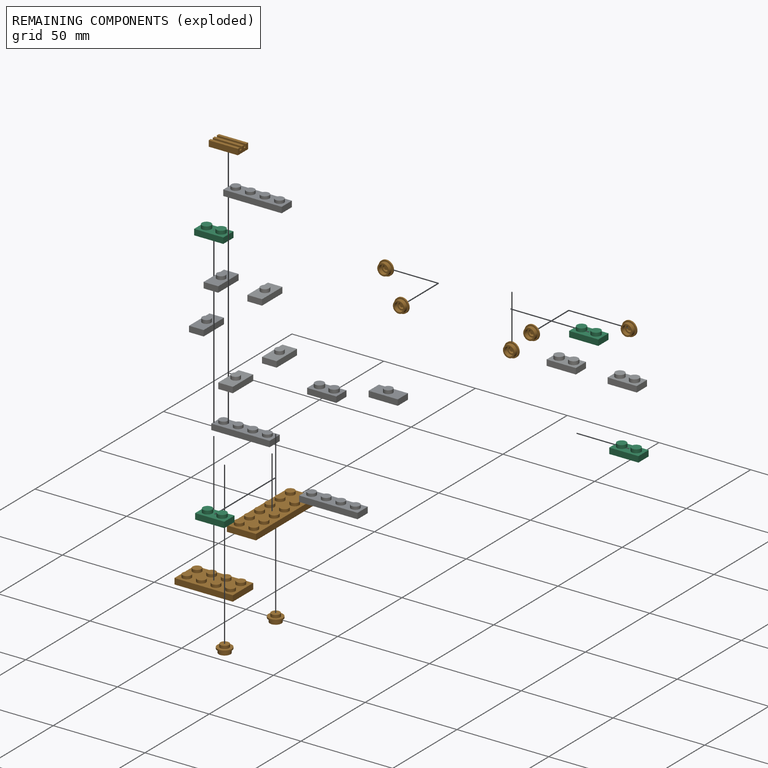
[diagram: remaining components — exploded]
REMAINING COMPONENTS (grouped) — the 14 components below fall outside the per-component tour by the significance rule stated above; both spotlight views highlight the whole group.
  P4: bounding box 7.9 x 7.9 x 4.5 mm, volume 87 mm^3. Held by: no mates (free).
  P1: bounding box 7.9 x 7.9 x 4.5 mm, volume 87 mm^3. Held by: no mates (free).
  P23: bounding box 7.9 x 7.9 x 4.5 mm, volume 87 mm^3. Held by: no mates (free).
  P9: bounding box 7.9 x 7.9 x 4.5 mm, volume 87 mm^3. Held by: no mates (free).
  P7: bounding box 47.9 x 15.9 x 4.7 mm, volume 1824 mm^3. Held by: FASTENED mate "Fastened 2" to P13; FASTENED mate "Fastened 1" to P15; FASTENED mate "Fastened 7" to P8; FASTENED mate "Fastened 8" to P22.
  P21: bounding box 7.9 x 7.9 x 4.5 mm, volume 87 mm^3. Held by: FASTENED mate "Fastened 5" to P15.
  P10: bounding box 7.9 x 7.9 x 4.5 mm, volume 87 mm^3. Held by: FASTENED mate "Fastened 6" to P13.
  P24: bounding box 31.8 x 15.9 x 4.7 mm, volume 1233 mm^3. Held by: FASTENED mate "Fastened 10" to P20; FASTENED mate "Fastened 12" to P19.
  P18: bounding box 15.9 x 8.0 x 5.1 mm, volume 373 mm^3. Recipe-attached (CADFS 00892229; recipe not printed under the significance rule). Held by: FASTENED mate "Fastened 14" to P25.
  P0: bounding box 15.9 x 8.0 x 3.2 mm, volume 226 mm^3. Held by: FASTENED mate "Fastened 15" to P11.
  P12: bounding box 15.9 x 8.0 x 5.1 mm, volume 373 mm^3. Recipe-attached (CADFS 00892229; recipe not printed under the significance rule). Held by: FASTENED mate "Fastened 3" to P13.
  P14: bounding box 7.9 x 7.9 x 4.5 mm, volume 87 mm^3. Held by: no mates (free).
  P17: bounding box 15.9 x 8.0 x 5.1 mm, volume 373 mm^3. Recipe-attached (CADFS 00892229; recipe not printed under the significance rule). Held by: no mates (free).
  P16: bounding box 15.9 x 8.0 x 5.1 mm, volume 373 mm^3. Recipe-attached (CADFS 00892229; recipe not printed under the significance rule). Held by: no mates (free).
PROVENANCE & LICENSES
Assembly (occurrences, transforms, mates, per-part STEP geometry): AutoMate dataset, Zenodo record 7776208, CC0.
Construction recipes: CADFS (HuggingFace VladPyatov/CADFS, CC-BY-4.0, layered over the ABC dataset), FeatureScript reconstruction programs keyed by ABC model id.
Join: ABC meta listings map ABC model id -> Onshape documentId; within a shared document, parts are matched by geometric signature (bounding-box dims + volume at 0.1% relative tolerance, exact B-rep face/solid counts).
Verification: 16 of this assembly's 26 components carry a recipe attachment, and every attachment is mesh-verified: the CADFS STEP and the AutoMate member STEP were compared as meshes in their shared local frame (symmetric sampled-point-to-mesh distance); worst across the 16 attachments: below the mesh-comparison resolution (tessellation chordal tolerance ~0.0497 mm) on a 33 mm part.
Renders: orthographic iso camera (az 35 / el 25); the floor grid conveys scale (grid pitch printed in each image; no ruler). In the exploded view each component is displaced by its stored offset vector: the offsets alone carry the explosion direction (mate normal/axis signs are not orientation cues and do not encode it), and separation distances are assigned per mate-chain, not proportionally to assembly-order depth.
